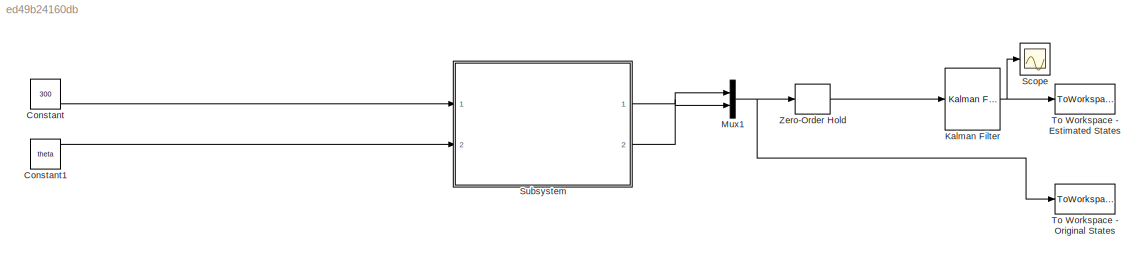
MODEL slx_ed49b24160db
KIND model
CONFIG AbsTol = auto
CONFIG FixedStep = auto
CONFIG MaxStep = auto
CONFIG MinStep = auto
CONFIG RelTol = 1e-3
CONFIG SampleTimeConstraint = Unconstrained
CONFIG Solver = VariableStepAuto
CONFIG SolverMode = SingleTasking
CONFIG SolverName = VariableStepAuto
CONFIG StartTime = 0.0
CONFIG StopTime = 30
BLOCK [Constant] Constant
  Value = 300
BLOCK [Constant] Constant1
  Value = theta
BLOCK [Reference] Kalman Filter  REF=ctrlSharedLib/Kalman Filter
  Ports = [1, 1]
  SourceBlock = ctrlSharedLib/Kalman Filter
  SourceType = ctrlKalmanFilter
BLOCK [Mux] Mux1
  DisplayOption = bar
  Inputs = 2
  Ports = [2, 1]
BLOCK [Scope] Scope
  NumInputPorts = 1
  Ports = [1]
  ScopeSpecificationString = Simulink.scopes.TimeScopeBlockCfg('CurrentConfiguration', extmgr.ConfigurationSet(extmgr.Configuration('Core','General UI',true),extmgr.Configuration('Core','Source UI',true),extmgr.Configuration('Sources','WiredSimulink',true),extmgr.Configuration('Visuals','Time Domain',true,'SerializedDisplays',{struct('MinYLimReal','-1.00000','MaxYLimReal','1.00000','YLabelReal','','MinYLimMag','0.00000','MaxY...<+1371ch>
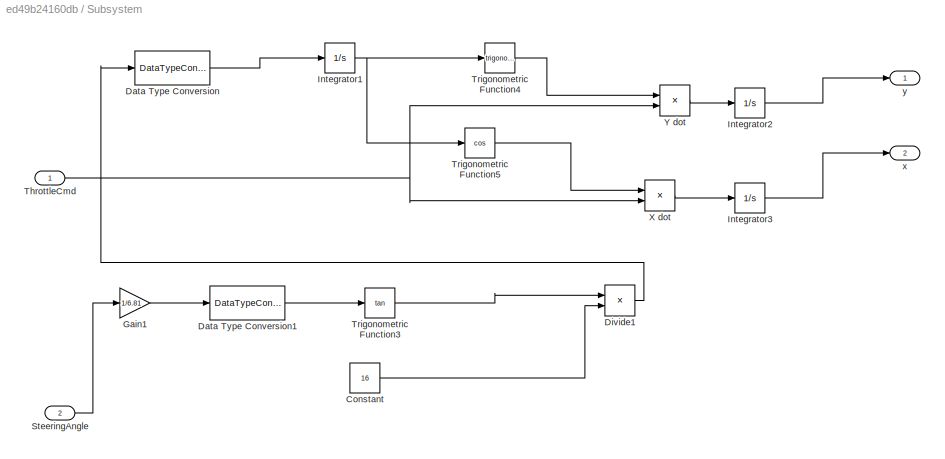
BLOCK [SubSystem] Subsystem
  Ports = [2, 2]
  RequestExecContextInheritance = off
  Variant = off
BLOCK [Constant] Subsystem/Constant
  Value = 16
BLOCK [DataTypeConversion] Subsystem/Data Type Conversion
  OutDataTypeStr = double
  RndMeth = Floor
  SaturateOnIntegerOverflow = off
BLOCK [DataTypeConversion] Subsystem/Data Type Conversion1
  OutDataTypeStr = double
  RndMeth = Floor
  SaturateOnIntegerOverflow = off
BLOCK [Product] Subsystem/Divide1
  InputSameDT = off
  Inputs = */
  OutDataTypeStr = Inherit: Inherit via internal rule
  Ports = [2, 1]
  RndMeth = Floor
  SaturateOnIntegerOverflow = off
BLOCK [Gain] Subsystem/Gain1
  Gain = 1/6.81
  OutDataTypeStr = Inherit: Inherit via internal rule
  ParamDataTypeStr = Inherit: Inherit via internal rule
  SaturateOnIntegerOverflow = off
BLOCK [Integrator] Subsystem/Integrator1
  Ports = [1, 1]
BLOCK [Integrator] Subsystem/Integrator2
  Ports = [1, 1]
BLOCK [Integrator] Subsystem/Integrator3
  Ports = [1, 1]
BLOCK [Inport] Subsystem/SteeringAngle
  IconDisplay = Port number
  Port = 2
BLOCK [Inport] Subsystem/ThrottleCmd
  IconDisplay = Port number
BLOCK [Trigonometry] Subsystem/Trigonometric Function3
  Operator = tan
  OutputSignalType = real
  Ports = [1, 1]
BLOCK [Trigonometry] Subsystem/Trigonometric Function4
  Ports = [1, 1]
BLOCK [Trigonometry] Subsystem/Trigonometric Function5
  Operator = cos
  Ports = [1, 1]
BLOCK [Product] Subsystem/X dot 
  InputSameDT = off
  OutDataTypeStr = Inherit: Inherit via internal rule
  Ports = [2, 1]
  RndMeth = Floor
  SaturateOnIntegerOverflow = off
BLOCK [Product] Subsystem/Y dot 
  InputSameDT = off
  OutDataTypeStr = Inherit: Inherit via internal rule
  Ports = [2, 1]
  RndMeth = Floor
  SaturateOnIntegerOverflow = off
BLOCK [Outport] Subsystem/x
  IconDisplay = Port number
  Port = 2
BLOCK [Outport] Subsystem/y
  IconDisplay = Port number
BLOCK [ToWorkspace] To Workspace - Estimated States
  FixptAsFi = on
  MaxDataPoints = inf
  Ports = [1]
  SampleTime = -1
  Save2DSignal = 2-D array (concatenate along first dimension)
  VariableName = xhat
BLOCK [ToWorkspace] To Workspace - Original States 
  FixptAsFi = on
  MaxDataPoints = inf
  Ports = [1]
  SampleTime = -1
  Save2DSignal = 2-D array (concatenate along first dimension)
  VariableName = xhat1
BLOCK [ZeroOrderHold] Zero-Order Hold
LINE Constant1:1 -> Subsystem:2
LINE Constant:1 -> Subsystem:1
NET Kalman Filter:1 -> Scope:1, To Workspace - Estimated States:1
NET Mux1:1 -> To Workspace - Original States :1, Zero-Order Hold:1
LINE Subsystem/Constant:1 -> Subsystem/Divide1:2
LINE Subsystem/Data Type Conversion1:1 -> Subsystem/Trigonometric Function3:1
LINE Subsystem/Data Type Conversion:1 -> Subsystem/Integrator1:1
LINE Subsystem/Divide1:1 -> Subsystem/Data Type Conversion:1
LINE Subsystem/Gain1:1 -> Subsystem/Data Type Conversion1:1
NET Subsystem/Integrator1:1 -> Subsystem/Trigonometric Function4:1, Subsystem/Trigonometric Function5:1
LINE Subsystem/Integrator2:1 -> Subsystem/y:1
LINE Subsystem/Integrator3:1 -> Subsystem/x:1
LINE Subsystem/SteeringAngle:1 -> Subsystem/Gain1:1
NET Subsystem/ThrottleCmd:1 -> Subsystem/X dot :2, Subsystem/Y dot :2
LINE Subsystem/Trigonometric Function3:1 -> Subsystem/Divide1:1
LINE Subsystem/Trigonometric Function4:1 -> Subsystem/Y dot :1
LINE Subsystem/Trigonometric Function5:1 -> Subsystem/X dot :1
LINE Subsystem/X dot :1 -> Subsystem/Integrator3:1
LINE Subsystem/Y dot :1 -> Subsystem/Integrator2:1
LINE Subsystem:1 -> Mux1:1
LINE Subsystem:2 -> Mux1:2
LINE Zero-Order Hold:1 -> Kalman Filter:1
note: NET lines group one-source signal fan-out (src -> all destinations, sorted); 1:1 wires keep LINE
